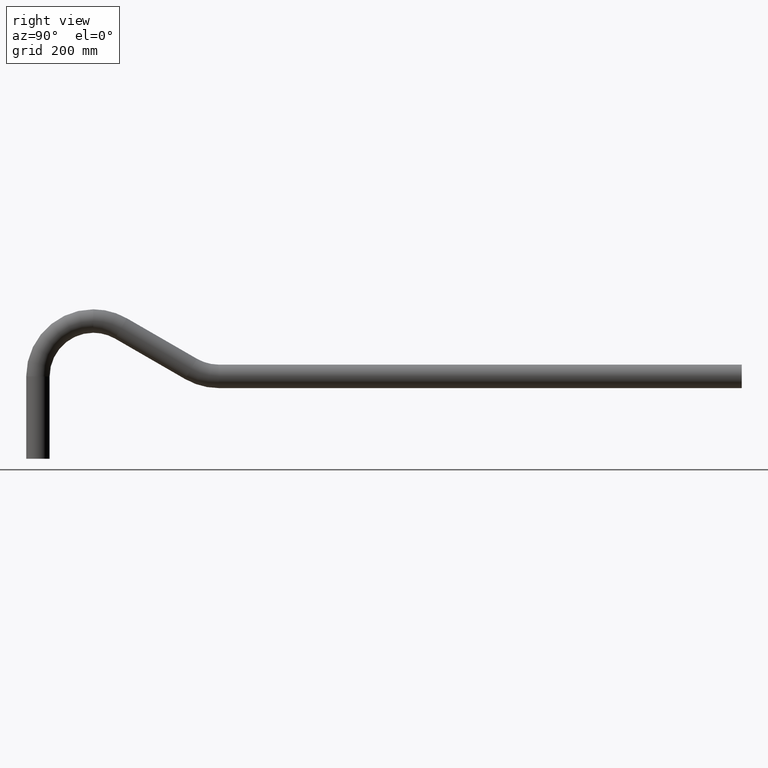
[diagram: clean part render]
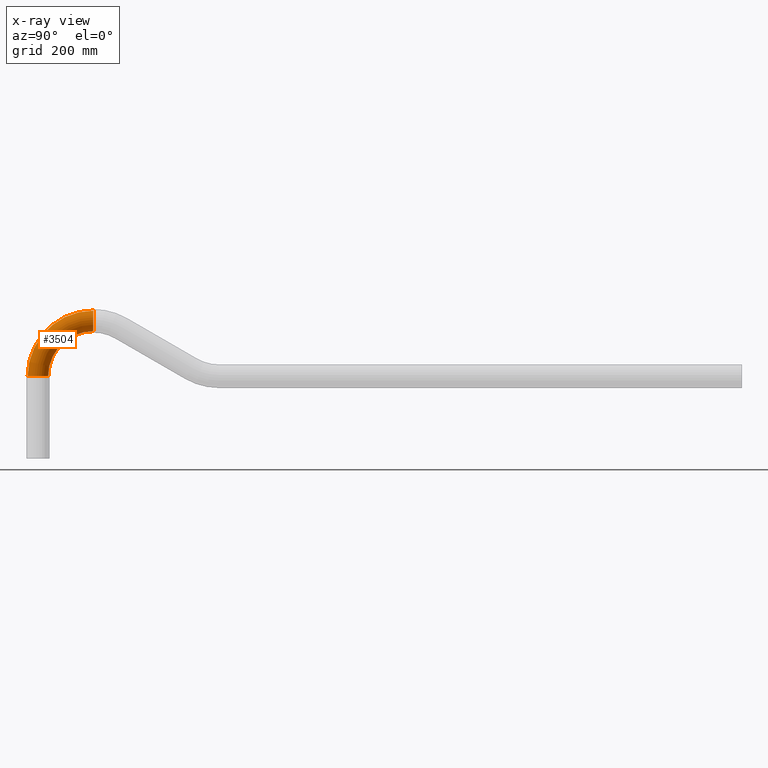
[diagram: x-ray — body ghosted, one internal face saturated and labeled with its STEP entity id]
A machine part, right view, then the same camera in x-ray: the body is ghosted and one INTERNAL B-rep face — a face not visible from any outside direction — is saturated and labeled: STEP entity #3504.
In plain terms, the highlighted toroidal blend (fillet) surface has major radius 100 mm and minor (blend) radius 18.6 mm.
Its self-contained STEP definition (entity closure, byte-faithful):
#30 = AXIS2_PLACEMENT_3D ( 'NONE', #6449, #8157, #5577 ) ;
#233 = CARTESIAN_POINT ( 'NONE',  ( 0.0000000000000000000, 78.79999999999957100, 155.7999999999999800 ) ) ;
#337 = CIRCLE ( 'NONE', #1251, 118.5999999999999800 ) ;
#905 = EDGE_CURVE ( 'NONE', #4398, #3791, #337, .T. ) ;
#1198 = ORIENTED_EDGE ( 'NONE', *, *, #11168, .F. ) ;
#1250 = CIRCLE ( 'NONE', #10583, 18.60000000000000500 ) ;
#1251 = AXIS2_PLACEMENT_3D ( 'NONE', #10828, #8353, #4757 ) ;
#1957 = ORIENTED_EDGE ( 'NONE', *, *, #905, .T. ) ;
#2205 = DIRECTION ( 'NONE',  ( 0.0000000000000000000, -1.000000000000000000, 0.0000000000000000000 ) ) ;
#2283 = ORIENTED_EDGE ( 'NONE', *, *, #4471, .F. ) ;
#2299 = DIRECTION ( 'NONE',  ( -1.000000000000000000, -0.0000000000000000000, 0.0000000000000000000 ) ) ;
#2378 = CARTESIAN_POINT ( 'NONE',  ( 0.0000000000000000000, 78.79999999999957100, 74.40000000000002000 ) ) ;
#3504 = ADVANCED_FACE ( 'NONE', ( #10320 ), #5824, .F. ) ;
#3543 = AXIS2_PLACEMENT_3D ( 'NONE', #2378, #2299, #8438 ) ;
#3791 = VERTEX_POINT ( 'NONE', #10860 ) ;
#4395 = CARTESIAN_POINT ( 'NONE',  ( 0.0000000000000000000, -21.20000000000041100, 74.39999999999990600 ) ) ;
#4398 = VERTEX_POINT ( 'NONE', #7985 ) ;
#4471 = EDGE_CURVE ( 'NONE', #4398, #9926, #4992, .T. ) ;
#4757 = DIRECTION ( 'NONE',  ( 0.0000000000000000000, 0.0000000000000000000, 1.000000000000000000 ) ) ;
#4992 = CIRCLE ( 'NONE', #8246, 18.59999999999999800 ) ;
#5319 = EDGE_CURVE ( 'NONE', #8753, #3791, #1250, .T. ) ;
#5359 = DIRECTION ( 'NONE',  ( 0.0000000000000000000, -1.071875439572228200E-015, 1.000000000000000000 ) ) ;
#5577 = DIRECTION ( 'NONE',  ( 0.0000000000000000000, 0.0000000000000000000, 1.000000000000000000 ) ) ;
#5790 = DIRECTION ( 'NONE',  ( 0.0000000000000000000, 0.0000000000000000000, -1.000000000000000000 ) ) ;
#5824 = TOROIDAL_SURFACE ( 'NONE', #3543, 99.99999999999997200, 18.59999999999999800 ) ;
#6249 = DIRECTION ( 'NONE',  ( 0.0000000000000000000, 1.000000000000000000, 7.461176240760461900E-016 ) ) ;
#6449 = CARTESIAN_POINT ( 'NONE',  ( 2.277843046414076800E-015, 78.79999999999957100, 74.40000000000002000 ) ) ;
#6922 = ORIENTED_EDGE ( 'NONE', *, *, #5319, .F. ) ;
#7985 = CARTESIAN_POINT ( 'NONE',  ( 2.277843046414076000E-015, -39.80000000000040900, 74.39999999999989200 ) ) ;
#8153 = EDGE_LOOP ( 'NONE', ( #2283, #1957, #6922, #1198 ) ) ;
#8157 = DIRECTION ( 'NONE',  ( -1.000000000000000000, -0.0000000000000000000, 0.0000000000000000000 ) ) ;
#8246 = AXIS2_PLACEMENT_3D ( 'NONE', #4395, #5359, #6249 ) ;
#8353 = DIRECTION ( 'NONE',  ( -1.000000000000000000, -0.0000000000000000000, 0.0000000000000000000 ) ) ;
#8438 = DIRECTION ( 'NONE',  ( 0.0000000000000000000, 0.0000000000000000000, 1.000000000000000000 ) ) ;
#8753 = VERTEX_POINT ( 'NONE', #233 ) ;
#9494 = CIRCLE ( 'NONE', #30, 81.39999999999997700 ) ;
#9926 = VERTEX_POINT ( 'NONE', #10978 ) ;
#10320 = FACE_OUTER_BOUND ( 'NONE', #8153, .T. ) ;
#10583 = AXIS2_PLACEMENT_3D ( 'NONE', #11003, #2205, #5790 ) ;
#10828 = CARTESIAN_POINT ( 'NONE',  ( 0.0000000000000000000, 78.79999999999957100, 74.40000000000002000 ) ) ;
#10860 = CARTESIAN_POINT ( 'NONE',  ( 0.0000000000000000000, 78.79999999999957100, 193.0000000000000000 ) ) ;
#10978 = CARTESIAN_POINT ( 'NONE',  ( 0.0000000000000000000, -2.600000000000414400, 74.39999999999992000 ) ) ;
#11003 = CARTESIAN_POINT ( 'NONE',  ( 0.0000000000000000000, 78.79999999999957100, 174.4000000000000100 ) ) ;
#11168 = EDGE_CURVE ( 'NONE', #9926, #8753, #9494, .T. ) ;